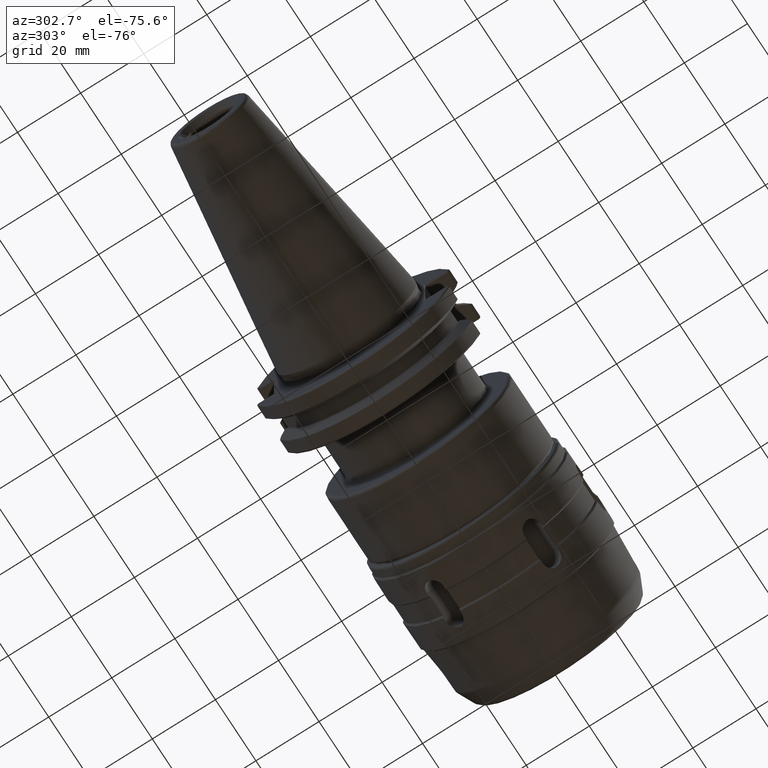
[diagram: clean part render]
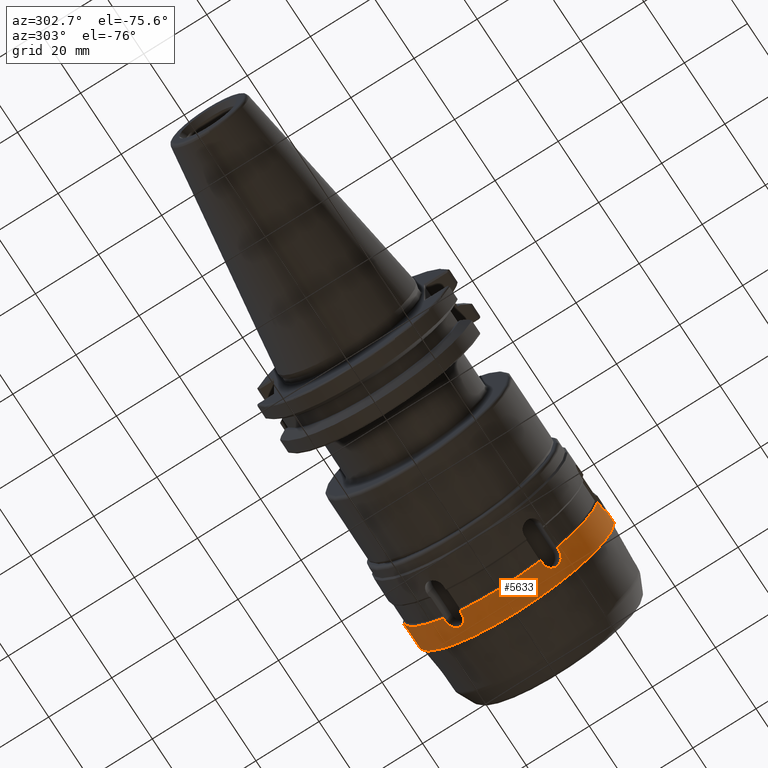
[diagram: same view with one face highlighted and labeled with its STEP entity id]
A machine part, auxiliary view. The second image highlights one B-rep face of the part: STEP entity #5633.
In plain terms, the highlighted cylindrical surface (partial cylindrical patch) has radius 31 mm, axis along (1, 0, 0).
Its self-contained STEP definition (entity closure, byte-faithful):
#4068=DIRECTION('',(1.E0,0.E0,0.E0));
#4069=VECTOR('',#4068,9.999999999998E-1);
#4070=CARTESIAN_POINT('',(1.9E1,1.802532483189E1,-2.522077843177E1));
#4071=LINE('',#4070,#4069);
#4072=CARTESIAN_POINT('',(2.E1,1.282917240919E1,-2.822077843177E1));
#4073=CARTESIAN_POINT('',(2.024038766129E1,1.282917240919E1,-2.822077843177E1));
#4074=CARTESIAN_POINT('',(2.070903979157E1,1.287957342136E1,-2.819795931166E1));
#4075=CARTESIAN_POINT('',(2.140749925070E1,1.311784261196E1,-2.808845106619E1));
#4076=CARTESIAN_POINT('',(2.200590061856E1,1.349453478254E1,-2.791007333680E1));
#4077=CARTESIAN_POINT('',(2.248371458194E1,1.397450809487E1,-2.767369188187E1));
#4078=CARTESIAN_POINT('',(2.283488392597E1,1.456245622314E1,-2.736971757284E1));
#4079=CARTESIAN_POINT('',(2.300772674218E1,1.519474267885E1,-2.702388318255E1));
#4080=CARTESIAN_POINT('',(2.300755054591E1,1.580645676088E1,-2.667069049084E1));
#4081=CARTESIAN_POINT('',(2.283526061211E1,1.642042744762E1,-2.629705873558E1));
#4082=CARTESIAN_POINT('',(2.248536610989E1,1.697658636431E1,-2.594060699092E1));
#4083=CARTESIAN_POINT('',(2.200993640072E1,1.742060686776E1,-2.564366262474E1));
#4084=CARTESIAN_POINT('',(2.141012092569E1,1.776552204014E1,-2.540522947397E1));
#4085=CARTESIAN_POINT('',(2.070935835901E1,1.798039781225E1,-2.525299178768E1));
#4086=CARTESIAN_POINT('',(2.024039145543E1,1.802532483189E1,-2.522077843177E1));
#4087=CARTESIAN_POINT('',(2.E1,1.802532483189E1,-2.522077843177E1));
#4089=DIRECTION('',(1.E0,0.E0,0.E0));
#4090=VECTOR('',#4089,9.999999999998E-1);
#4091=CARTESIAN_POINT('',(1.9E1,1.282917240919E1,-2.822077843177E1));
#4092=LINE('',#4091,#4090);
#4093=DIRECTION('',(1.E0,0.E0,0.E0));
#4094=VECTOR('',#4093,9.999999999998E-1);
#4095=CARTESIAN_POINT('',(1.9E1,-1.282917240919E1,-2.822077843177E1));
#4096=LINE('',#4095,#4094);
#4097=CARTESIAN_POINT('',(2.E1,-1.802532483189E1,-2.522077843177E1));
#4098=CARTESIAN_POINT('',(2.024034034616E1,-1.802532483189E1,
-2.522077843177E1));
#4099=CARTESIAN_POINT('',(2.070890742395E1,-1.798037878638E1,
-2.525300559473E1));
#4100=CARTESIAN_POINT('',(2.140724798818E1,-1.776648973138E1,
-2.540454086827E1));
#4101=CARTESIAN_POINT('',(2.200559931553E1,-1.742377276955E1,
-2.564150441890E1));
#4102=CARTESIAN_POINT('',(2.248333700234E1,-1.697928032582E1,
-2.593885158199E1));
#4103=CARTESIAN_POINT('',(2.283435930680E1,-1.642259260952E1,
-2.629571200146E1));
#4104=CARTESIAN_POINT('',(2.300736031224E1,-1.580814373309E1,
-2.666969431882E1));
#4105=CARTESIAN_POINT('',(2.300793892423E1,-1.519625311085E1,
-2.702303570459E1));
#4106=CARTESIAN_POINT('',(2.283547308664E1,-1.456387012616E1,
-2.736896362463E1));
#4107=CARTESIAN_POINT('',(2.248511254713E1,-1.397659134474E1,
-2.767262984424E1));
#4108=CARTESIAN_POINT('',(2.200962027068E1,-1.349751833705E1,
-2.790863536669E1));
#4109=CARTESIAN_POINT('',(2.140986883040E1,-1.311870454432E1,
-2.808805829743E1));
#4110=CARTESIAN_POINT('',(2.070922555355E1,-1.287951455562E1,
-2.819798571623E1));
#4111=CARTESIAN_POINT('',(2.024034444438E1,-1.282917240919E1,
-2.822077843177E1));
#4112=CARTESIAN_POINT('',(2.E1,-1.282917240919E1,-2.822077843177E1));
#4114=DIRECTION('',(1.E0,0.E0,0.E0));
#4115=VECTOR('',#4114,9.999999999998E-1);
#4116=CARTESIAN_POINT('',(1.9E1,-1.802532483189E1,-2.522077843177E1));
#4117=LINE('',#4116,#4115);
#4118=DIRECTION('',(1.E0,0.E0,0.E0));
#4119=VECTOR('',#4118,9.999999999998E-1);
#4120=CARTESIAN_POINT('',(1.9E1,-3.085449724108E1,-3.E0));
#4121=LINE('',#4120,#4119);
#4122=CARTESIAN_POINT('',(2.3E1,-3.1E1,3.014796779079E-14));
#4123=CARTESIAN_POINT('',(2.3E1,-3.1E1,-2.223033072954E-1));
#4124=CARTESIAN_POINT('',(2.295251938582E1,-3.099534748575E1,
-6.589076681209E-1));
#4125=CARTESIAN_POINT('',(2.272635178321E1,-3.097423484678E1,
-1.315168124746E0));
#4126=CARTESIAN_POINT('',(2.235695694500E1,-3.094345362326E1,
-1.895632834471E0));
#4127=CARTESIAN_POINT('',(2.188996301131E1,-3.091087972273E1,
-2.361166348209E0));
#4128=CARTESIAN_POINT('',(2.131306679922E1,-3.088030252442E1,
-2.727035910819E0));
#4129=CARTESIAN_POINT('',(2.065849888957E1,-3.085917110265E1,
-2.952546423359E0));
#4130=CARTESIAN_POINT('',(2.022235170854E1,-3.085449724108E1,-3.E0));
#4131=CARTESIAN_POINT('',(2.E1,-3.085449724108E1,-3.E0));
#4133=DIRECTION('',(-1.E0,0.E0,0.E0));
#4134=VECTOR('',#4133,4.E0);
#4135=CARTESIAN_POINT('',(2.7E1,-3.1E1,0.E0));
#4136=LINE('',#4135,#4134);
#4137=CARTESIAN_POINT('',(2.7E1,0.E0,0.E0));
#4138=DIRECTION('',(-1.E0,0.E0,0.E0));
#4139=DIRECTION('',(0.E0,1.E0,0.E0));
#4140=AXIS2_PLACEMENT_3D('',#4137,#4138,#4139);
#4142=DIRECTION('',(-1.E0,0.E0,0.E0));
#4143=VECTOR('',#4142,4.E0);
#4144=CARTESIAN_POINT('',(2.7E1,3.1E1,0.E0));
#4145=LINE('',#4144,#4143);
#4146=CARTESIAN_POINT('',(2.E1,3.085449724108E1,-3.E0));
#4147=CARTESIAN_POINT('',(2.022240630216E1,3.085449724108E1,-3.E0));
#4148=CARTESIAN_POINT('',(2.065838136800E1,3.085917502176E1,-2.952508310214E0));
#4149=CARTESIAN_POINT('',(2.131145219158E1,3.088024733363E1,-2.727606617451E0));
#4150=CARTESIAN_POINT('',(2.188679007143E1,3.091068639617E1,-2.363606053873E0));
#4151=CARTESIAN_POINT('',(2.235524595988E1,3.094331297320E1,-1.898074953285E0));
#4152=CARTESIAN_POINT('',(2.272644310828E1,3.097424022020E1,-1.315329764347E0));
#4153=CARTESIAN_POINT('',(2.295263298973E1,3.099535914235E1,
-6.583747784208E-1));
#4154=CARTESIAN_POINT('',(2.3E1,3.1E1,-2.219912098287E-1));
#4155=CARTESIAN_POINT('',(2.3E1,3.1E1,2.491909423061E-14));
#4157=DIRECTION('',(1.E0,0.E0,0.E0));
#4158=VECTOR('',#4157,9.999999999998E-1);
#4159=CARTESIAN_POINT('',(1.9E1,3.085449724108E1,-3.E0));
#4160=LINE('',#4159,#4158);
#4227=CARTESIAN_POINT('',(1.9E1,-1.802532483189E1,-2.522077843177E1));
#4229=CARTESIAN_POINT('',(1.9E1,-3.085449724108E1,-3.E0));
#4236=CARTESIAN_POINT('',(1.9E1,0.E0,0.E0));
#4237=DIRECTION('',(-1.E0,0.E0,0.E0));
#4238=DIRECTION('',(0.E0,-5.814620913514E-1,-8.135734977992E-1));
#4239=AXIS2_PLACEMENT_3D('',#4236,#4237,#4238);
#4241=CARTESIAN_POINT('',(1.9E1,1.802532483189E1,-2.522077843177E1));
#4248=CARTESIAN_POINT('',(1.9E1,0.E0,0.E0));
#4249=DIRECTION('',(-1.E0,0.E0,0.E0));
#4250=DIRECTION('',(0.E0,9.953063626156E-1,-9.677419354839E-2));
#4251=AXIS2_PLACEMENT_3D('',#4248,#4249,#4250);
#4265=CARTESIAN_POINT('',(1.9E1,1.282917240919E1,-2.822077843177E1));
#4267=CARTESIAN_POINT('',(1.9E1,-1.282917240919E1,-2.822077843177E1));
#4274=CARTESIAN_POINT('',(1.9E1,0.E0,0.E0));
#4275=DIRECTION('',(-1.E0,0.E0,0.E0));
#4276=DIRECTION('',(0.E0,4.138442712641E-1,-9.103476913476E-1));
#4277=AXIS2_PLACEMENT_3D('',#4274,#4275,#4276);
#4292=CARTESIAN_POINT('',(2.3E1,-3.1E1,3.014796779079E-14));
#4352=CARTESIAN_POINT('',(2.3E1,3.1E1,2.491909423061E-14));
#5046=CARTESIAN_POINT('',(2.7E1,3.1E1,0.E0));
#5047=VERTEX_POINT('',#5046);
#5082=CARTESIAN_POINT('',(2.7E1,-3.1E1,0.E0));
#5083=VERTEX_POINT('',#5082);
#5104=VERTEX_POINT('',#4352);
#5112=VERTEX_POINT('',#4146);
#5113=CARTESIAN_POINT('',(1.9E1,3.085449724108E1,-3.E0));
#5114=VERTEX_POINT('',#5113);
#5184=VERTEX_POINT('',#4292);
#5187=VERTEX_POINT('',#4229);
#5199=CARTESIAN_POINT('',(2.E1,-3.085449724108E1,-3.E0));
#5200=VERTEX_POINT('',#5199);
#5211=VERTEX_POINT('',#4267);
#5214=VERTEX_POINT('',#4227);
#5221=CARTESIAN_POINT('',(2.E1,-1.282917240919E1,-2.822077843177E1));
#5222=VERTEX_POINT('',#5221);
#5223=VERTEX_POINT('',#4097);
#5236=VERTEX_POINT('',#4241);
#5239=VERTEX_POINT('',#4265);
#5246=CARTESIAN_POINT('',(2.E1,1.802532483189E1,-2.522077843177E1));
#5247=VERTEX_POINT('',#5246);
#5248=VERTEX_POINT('',#4072);
#5595=CARTESIAN_POINT('',(0.E0,0.E0,0.E0));
#5596=DIRECTION('',(1.E0,0.E0,0.E0));
#5597=DIRECTION('',(0.E0,-1.E0,0.E0));
#5598=AXIS2_PLACEMENT_3D('',#5595,#5596,#5597);
#5599=CYLINDRICAL_SURFACE('',#5598,3.1E1);
#5601=ORIENTED_EDGE('',*,*,#5600,.T.);
#5603=ORIENTED_EDGE('',*,*,#5602,.F.);
#5605=ORIENTED_EDGE('',*,*,#5604,.F.);
#5607=ORIENTED_EDGE('',*,*,#5606,.T.);
#5609=ORIENTED_EDGE('',*,*,#5608,.T.);
#5611=ORIENTED_EDGE('',*,*,#5610,.F.);
#5613=ORIENTED_EDGE('',*,*,#5612,.F.);
#5615=ORIENTED_EDGE('',*,*,#5614,.T.);
#5617=ORIENTED_EDGE('',*,*,#5616,.T.);
#5619=ORIENTED_EDGE('',*,*,#5618,.F.);
#5621=ORIENTED_EDGE('',*,*,#5620,.F.);
#5622=ORIENTED_EDGE('',*,*,#5588,.F.);
#5624=ORIENTED_EDGE('',*,*,#5623,.T.);
#5626=ORIENTED_EDGE('',*,*,#5625,.F.);
#5628=ORIENTED_EDGE('',*,*,#5627,.F.);
#5630=ORIENTED_EDGE('',*,*,#5629,.T.);
#5631=EDGE_LOOP('',(#5601,#5603,#5605,#5607,#5609,#5611,#5613,#5615,#5617,#5619,
#5621,#5622,#5624,#5626,#5628,#5630));
#5632=FACE_OUTER_BOUND('',#5631,.F.);
#5633=ADVANCED_FACE('',(#5632),#5599,.T.);
#4088=B_SPLINE_CURVE_WITH_KNOTS('',3,(#4072,#4073,#4074,#4075,#4076,#4077,#4078,
#4079,#4080,#4081,#4082,#4083,#4084,#4085,#4086,#4087),.UNSPECIFIED.,.F.,.F.,(4,
1,1,1,1,1,1,1,1,1,1,1,1,4),(0.E0,7.692307692308E-2,1.538461538462E-1,
2.307692307692E-1,3.076923076923E-1,3.846153846154E-1,4.615384615385E-1,
5.384615384615E-1,6.153846153846E-1,6.923076923077E-1,7.692307692308E-1,
8.461538461538E-1,9.230769230769E-1,1.E0),.UNSPECIFIED.);
#4113=B_SPLINE_CURVE_WITH_KNOTS('',3,(#4097,#4098,#4099,#4100,#4101,#4102,#4103,
#4104,#4105,#4106,#4107,#4108,#4109,#4110,#4111,#4112),.UNSPECIFIED.,.F.,.F.,(4,
1,1,1,1,1,1,1,1,1,1,1,1,4),(0.E0,7.692307692308E-2,1.538461538462E-1,
2.307692307692E-1,3.076923076923E-1,3.846153846154E-1,4.615384615385E-1,
5.384615384615E-1,6.153846153846E-1,6.923076923077E-1,7.692307692308E-1,
8.461538461538E-1,9.230769230769E-1,1.E0),.UNSPECIFIED.);
#4132=B_SPLINE_CURVE_WITH_KNOTS('',3,(#4122,#4123,#4124,#4125,#4126,#4127,#4128,
#4129,#4130,#4131),.UNSPECIFIED.,.F.,.F.,(4,1,1,1,1,1,1,4),(0.E0,
1.428571428571E-1,2.857142857143E-1,4.285714285714E-1,5.714285714286E-1,
7.142857142857E-1,8.571428571429E-1,1.E0),.UNSPECIFIED.);
#4141=CIRCLE('',#4140,3.1E1);
#4156=B_SPLINE_CURVE_WITH_KNOTS('',3,(#4146,#4147,#4148,#4149,#4150,#4151,#4152,
#4153,#4154,#4155),.UNSPECIFIED.,.F.,.F.,(4,1,1,1,1,1,1,4),(0.E0,
1.428571428571E-1,2.857142857143E-1,4.285714285714E-1,5.714285714286E-1,
7.142857142857E-1,8.571428571429E-1,1.E0),.UNSPECIFIED.);
#4240=CIRCLE('',#4239,3.1E1);
#4252=CIRCLE('',#4251,3.1E1);
#4278=CIRCLE('',#4277,3.1E1);
#5588=EDGE_CURVE('',#5047,#5083,#4141,.T.);
#5600=EDGE_CURVE('',#5236,#5247,#4071,.T.);
#5602=EDGE_CURVE('',#5248,#5247,#4088,.T.);
#5604=EDGE_CURVE('',#5239,#5248,#4092,.T.);
#5606=EDGE_CURVE('',#5239,#5211,#4278,.T.);
#5608=EDGE_CURVE('',#5211,#5222,#4096,.T.);
#5610=EDGE_CURVE('',#5223,#5222,#4113,.T.);
#5612=EDGE_CURVE('',#5214,#5223,#4117,.T.);
#5614=EDGE_CURVE('',#5214,#5187,#4240,.T.);
#5616=EDGE_CURVE('',#5187,#5200,#4121,.T.);
#5618=EDGE_CURVE('',#5184,#5200,#4132,.T.);
#5620=EDGE_CURVE('',#5083,#5184,#4136,.T.);
#5623=EDGE_CURVE('',#5047,#5104,#4145,.T.);
#5625=EDGE_CURVE('',#5112,#5104,#4156,.T.);
#5627=EDGE_CURVE('',#5114,#5112,#4160,.T.);
#5629=EDGE_CURVE('',#5114,#5236,#4252,.T.);